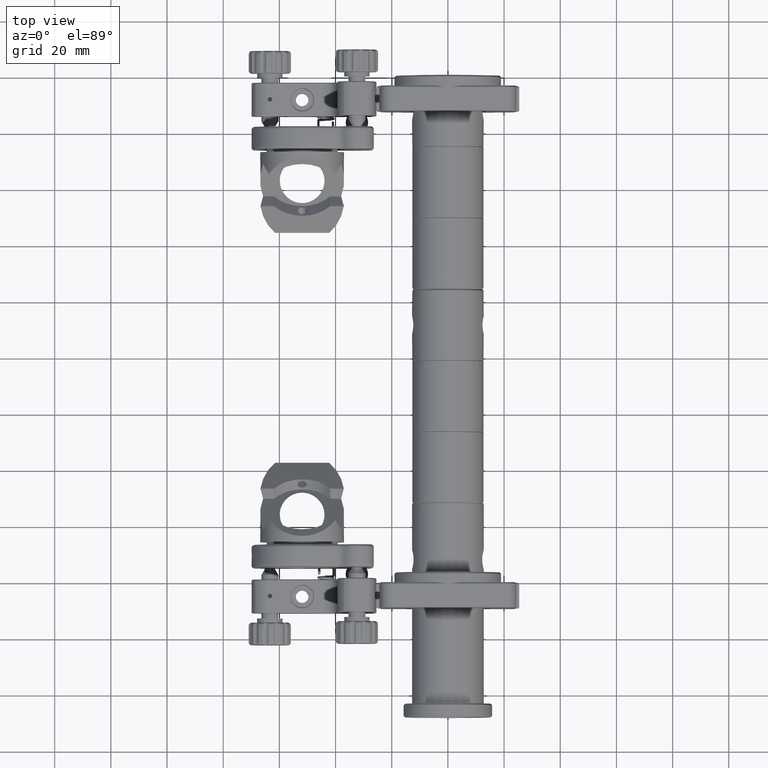
[diagram: clean part render]
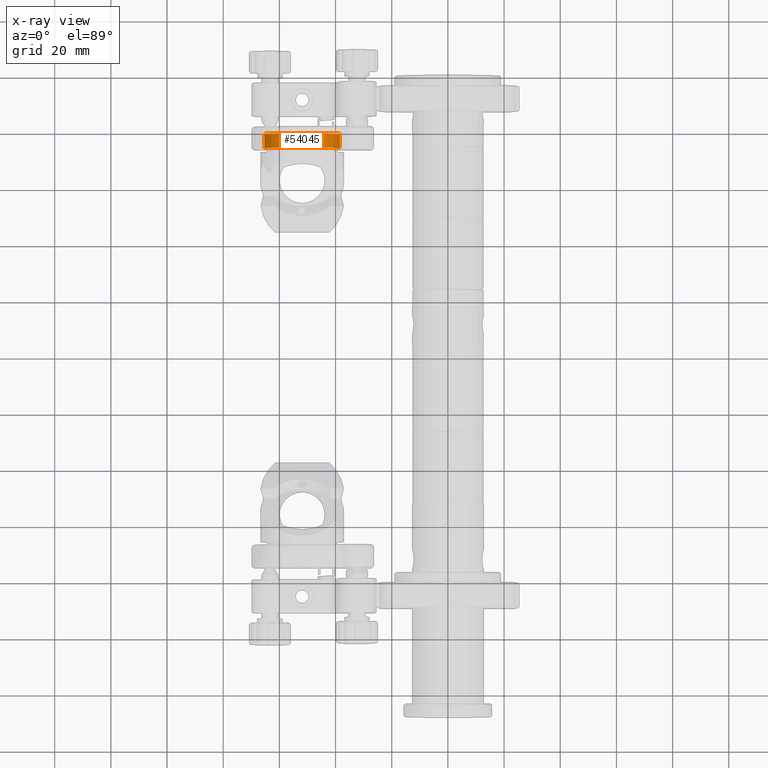
[diagram: x-ray — body ghosted, one internal face saturated and labeled with its STEP entity id]
A machine part, top view, then the same camera in x-ray: the body is ghosted and one INTERNAL B-rep face — a face not visible from any outside direction — is saturated and labeled: STEP entity #54045.
In plain terms, the highlighted cylindrical surface (partial cylindrical patch) has radius 13.5 mm, axis along (-0, -1, 0).
Its self-contained STEP definition (entity closure, byte-faithful):
#12 = CIRCLE ( 'NONE', #44363, 13.50000000000000200 ) ;
#335 = EDGE_CURVE ( 'NONE', #698, #12741, #46315, .T. ) ;
#546 = CYLINDRICAL_SURFACE ( 'NONE', #41869, 13.50000000000000200 ) ;
#698 = VERTEX_POINT ( 'NONE', #32241 ) ;
#2314 = CARTESIAN_POINT ( 'NONE',  ( -51.90000000000009100, -0.7647025247540333300, 13.49999999999999500 ) ) ;
#2693 = CARTESIAN_POINT ( 'NONE',  ( -52.73179753399249800, -3.855806062625581500, 13.47581400551097500 ) ) ;
#2899 = CARTESIAN_POINT ( 'NONE',  ( -53.49702255084801500, -1.986235078294259300, 13.40522169324622200 ) ) ;
#2925 = CARTESIAN_POINT ( 'NONE',  ( -50.89387000252127500, -3.726885769342837700, 13.46275515442689000 ) ) ;
#3083 = CARTESIAN_POINT ( 'NONE',  ( -53.14203697783220500, -1.323185423163695900, 13.44296017083660500 ) ) ;
#4809 = ORIENTED_EDGE ( 'NONE', *, *, #38035, .T. ) ;
#5009 = CARTESIAN_POINT ( 'NONE',  ( -51.90000000000001300, -5.414702524754026100, -3.469446951953614200E-015 ) ) ;
#6102 = CARTESIAN_POINT ( 'NONE',  ( -52.33267429338029300, -0.8080016898627732100, 13.49452899094114700 ) ) ;
#6671 = DIRECTION ( 'NONE',  ( 2.569960705150825000E-015, -1.405447260629357400E-016, -1.000000000000000000 ) ) ;
#6931 = CARTESIAN_POINT ( 'NONE',  ( -50.33409661521744000, -1.883526023011318900, 13.40894032977318600 ) ) ;
#7102 = CARTESIAN_POINT ( 'NONE',  ( -53.14349354139506000, -3.504555966340540300, 13.44282476577501500 ) ) ;
#7138 = CARTESIAN_POINT ( 'NONE',  ( -51.90000000000009100, -0.7647025247540333300, 13.49999999999999500 ) ) ;
#7333 = CARTESIAN_POINT ( 'NONE',  ( -51.79087088004188600, -4.064702524754015800, 13.49999999999999600 ) ) ;
#7898 = CARTESIAN_POINT ( 'NONE',  ( -53.55007833630671900, -2.522610514484297200, 13.39877761179538900 ) ) ;
#9625 = DIRECTION ( 'NONE',  ( 2.569960705150825000E-015, -1.284980352575412500E-016, -1.000000000000000000 ) ) ;
#11482 = DIRECTION ( 'NONE',  ( -8.805037054117872500E-017, -1.000000000000000000, 6.245004513516504300E-017 ) ) ;
#11540 = CARTESIAN_POINT ( 'NONE',  ( -53.46593205063715700, -2.945781966528259400, 13.40893687787423400 ) ) ;
#11573 = CARTESIAN_POINT ( 'NONE',  ( -51.07199022769644600, -0.9834636769167346400, 13.47488082814570600 ) ) ;
#11944 = CARTESIAN_POINT ( 'NONE',  ( -52.33499326868661000, -4.020768339289401400, 13.49445186381718300 ) ) ;
#11971 = CARTESIAN_POINT ( 'NONE',  ( -51.36769156081574300, -3.980219503143966900, 13.48987206557105800 ) ) ;
#12330 = EDGE_LOOP ( 'NONE', ( #49856, #16319 ) ) ;
#12350 = CARTESIAN_POINT ( 'NONE',  ( -53.38324467731341400, -3.145574461490774400, 13.41833509080950600 ) ) ;
#12381 = CARTESIAN_POINT ( 'NONE',  ( -50.45809772933848300, -3.245127229097543700, 13.42303167484919500 ) ) ;
#12741 = VERTEX_POINT ( 'NONE', #42122 ) ;
#13492 = VERTEX_POINT ( 'NONE', #30700 ) ;
#15933 = VECTOR ( 'NONE', #22797, 1000.000000000000000 ) ;
#16121 = DIRECTION ( 'NONE',  ( 2.569960705150825000E-015, -1.405447260629357400E-016, -1.000000000000000000 ) ) ;
#16187 = CARTESIAN_POINT ( 'NONE',  ( -53.53944186464300300, -2.629880052052961900, 13.40009977025839100 ) ) ;
#16319 = ORIENTED_EDGE ( 'NONE', *, *, #16334, .T. ) ;
#16334 = EDGE_CURVE ( 'NONE', #42150, #48317, #34350, .T. ) ;
#16619 = CARTESIAN_POINT ( 'NONE',  ( -50.25007928184694400, -2.630770651108476100, 13.39879702175430700 ) ) ;
#16810 = CARTESIAN_POINT ( 'NONE',  ( -51.16790479175301000, -3.897346207543555000, 13.48050582233333500 ) ) ;
#16984 = CARTESIAN_POINT ( 'NONE',  ( -52.11820611145374500, -4.064702524754014900, 13.49999999999998900 ) ) ;
#17107 = EDGE_CURVE ( 'NONE', #13492, #50447, #12, .T. ) ;
#17226 = LINE ( 'NONE', #19118, #43067 ) ;
#19118 = CARTESIAN_POINT ( 'NONE',  ( -63.15651268319138700, -0.4147025247540276300, -7.452578225899526600 ) ) ;
#21020 = CARTESIAN_POINT ( 'NONE',  ( -50.41685076756294800, -1.683627808464032800, 13.41834574499452500 ) ) ;
#21423 = CARTESIAN_POINT ( 'NONE',  ( -50.30289798555133300, -1.986433207663603500, 13.40521228662290700 ) ) ;
#22797 = DIRECTION ( 'NONE',  ( -8.805037054117872500E-017, -1.000000000000000000, 6.245004513516504300E-017 ) ) ;
#24785 = CARTESIAN_POINT ( 'NONE',  ( -52.72983080532562600, -0.9724558566957785000, 13.47593783623373500 ) ) ;
#24923 = CARTESIAN_POINT ( 'NONE',  ( -51.90000000000001300, -0.4147025247540274100, -3.469446951953614200E-015 ) ) ;
#25600 = CARTESIAN_POINT ( 'NONE',  ( -51.47116408247469400, -0.8177537099387979200, 13.49360239637567800 ) ) ;
#25807 = CARTESIAN_POINT ( 'NONE',  ( -50.29348866391359300, -2.848071506972018200, 13.40432701888346800 ) ) ;
#28102 = LINE ( 'NONE', #40636, #15933 ) ;
#29007 = CARTESIAN_POINT ( 'NONE',  ( -51.90000000000009100, -0.7647025247540333300, 13.49999999999999500 ) ) ;
#29988 = CARTESIAN_POINT ( 'NONE',  ( -53.49762771145226700, -2.840914551095862000, 13.40514935299204100 ) ) ;
#30196 = CARTESIAN_POINT ( 'NONE',  ( -52.91375111935383300, -1.095206250611851000, 13.46275026523245100 ) ) ;
#30392 = CARTESIAN_POINT ( 'NONE',  ( -53.21171474734386900, -1.407970468592361500, 13.43625794800760300 ) ) ;
#30587 = CARTESIAN_POINT ( 'NONE',  ( -53.38221364422906800, -1.681738509126098300, 13.41844948242673000 ) ) ;
#30694 = ORIENTED_EDGE ( 'NONE', *, *, #335, .T. ) ;
#30700 = CARTESIAN_POINT ( 'NONE',  ( -40.64348731680859600, -0.4147025247540295800, -7.452578225899463500 ) ) ;
#30717 = FACE_BOUND ( 'NONE', #12330, .T. ) ;
#32241 = CARTESIAN_POINT ( 'NONE',  ( -40.64348731680859600, -5.414702524754027900, -7.452578225899467100 ) ) ;
#32373 = DIRECTION ( 'NONE',  ( 8.805037054117872500E-017, 1.000000000000000000, -6.245004513516504300E-017 ) ) ;
#32770 = ORIENTED_EDGE ( 'NONE', *, *, #17107, .F. ) ;
#34350 = B_SPLINE_CURVE_WITH_KNOTS ( 'NONE', 3,
 ( #29007, #47644, #6102, #24785, #30196, #3083, #30392, #53278, #30587, #43656, #2899, #35396, #44460, #7898, #16187, #29988, #11540, #12350, #34604, #39426, #7102, #52872, #2693, #11944, #16984, #39218 ),
 .UNSPECIFIED., .F., .F.,
 ( 4, 2, 2, 2, 2, 2, 2, 2, 2, 2, 2, 2, 4 ),
 ( 0.005163477524172888800, 0.005808758060064343900, 0.006454038595955799100, 0.006776678863901519300, 0.007099319131847239500, 0.007421959399792959700, 0.007744599667738679900, 0.008067239935684400100, 0.008389880203630118600, 0.008712520471575838800, 0.009035160739521559000, 0.009680441275413013300, 0.01032572181130446800 ),
 .UNSPECIFIED. ) ;
#34363 = DIRECTION ( 'NONE',  ( -8.805037054117872500E-017, -1.000000000000000000, 6.245004513516504300E-017 ) ) ;
#34604 = CARTESIAN_POINT ( 'NONE',  ( -53.33263635951028200, -3.240337529556913700, 13.42390279988092600 ) ) ;
#34629 = CARTESIAN_POINT ( 'NONE',  ( -51.47254701531492300, -4.011999909684673700, 13.49364386035147600 ) ) ;
#34823 = CARTESIAN_POINT ( 'NONE',  ( -50.46849688010063800, -1.587148804442257500, 13.42402329545189400 ) ) ;
#35019 = CARTESIAN_POINT ( 'NONE',  ( -51.36829771951184400, -0.8489807550742863900, 13.48989597384511200 ) ) ;
#35224 = CARTESIAN_POINT ( 'NONE',  ( -51.68358586175476400, -4.053982827444836600, 13.49867792062929300 ) ) ;
#35396 = CARTESIAN_POINT ( 'NONE',  ( -53.53912780388785100, -2.197158453093537300, 13.40013842150587600 ) ) ;
#36456 = FACE_OUTER_BOUND ( 'NONE', #41543, .T. ) ;
#37111 = DIRECTION ( 'NONE',  ( -8.805037054117872500E-017, -1.000000000000000000, 6.245004513516504300E-017 ) ) ;
#38035 = EDGE_CURVE ( 'NONE', #13492, #698, #28102, .T. ) ;
#38687 = CARTESIAN_POINT ( 'NONE',  ( -63.15651268319138700, -0.4147025247540276300, -7.452578225899526600 ) ) ;
#39100 = CARTESIAN_POINT ( 'NONE',  ( -51.90000000000009800, -4.064702524754015800, 13.49999999999999100 ) ) ;
#39218 = CARTESIAN_POINT ( 'NONE',  ( -51.90000000000009800, -4.064702524754015800, 13.49999999999999100 ) ) ;
#39426 = CARTESIAN_POINT ( 'NONE',  ( -53.21303781060167600, -3.419715861818298100, 13.43612834960920400 ) ) ;
#39457 = CARTESIAN_POINT ( 'NONE',  ( -51.07316539467920100, -3.846647696417468500, 13.47495523017862100 ) ) ;
#39645 = CARTESIAN_POINT ( 'NONE',  ( -50.58099125586964100, -3.429084449845515100, 13.43627582242301700 ) ) ;
#39848 = CARTESIAN_POINT ( 'NONE',  ( -51.90000000000009800, -4.064702524754015800, 13.49999999999999100 ) ) ;
#40636 = CARTESIAN_POINT ( 'NONE',  ( -40.64348731680859600, -0.4147025247540295800, -7.452578225899467100 ) ) ;
#41543 = EDGE_LOOP ( 'NONE', ( #4809, #30694, #58717, #32770 ) ) ;
#41869 = AXIS2_PLACEMENT_3D ( 'NONE', #24923, #11482, #16121 ) ;
#42122 = CARTESIAN_POINT ( 'NONE',  ( -63.15651268319138700, -5.414702524754026100, -7.452578225899526600 ) ) ;
#42150 = VERTEX_POINT ( 'NONE', #2314 ) ;
#42640 = CARTESIAN_POINT ( 'NONE',  ( -51.90000000000001300, -0.4147025247540274100, -3.469446951953614200E-015 ) ) ;
#42684 = AXIS2_PLACEMENT_3D ( 'NONE', #5009, #37111, #9625 ) ;
#43067 = VECTOR ( 'NONE', #32373, 1000.000000000000000 ) ;
#43656 = CARTESIAN_POINT ( 'NONE',  ( -53.46519762705632700, -1.881457812073683300, 13.40902308849658200 ) ) ;
#44293 = CARTESIAN_POINT ( 'NONE',  ( -50.80906033101026500, -3.657246016099700000, 13.45606456767560700 ) ) ;
#44363 = AXIS2_PLACEMENT_3D ( 'NONE', #42640, #34363, #6671 ) ;
#44460 = CARTESIAN_POINT ( 'NONE',  ( -53.54992080364772300, -2.304412036103053100, 13.39879701122412900 ) ) ;
#44490 = CARTESIAN_POINT ( 'NONE',  ( -50.65617448500511700, -1.325092777856510500, 13.44279982074448300 ) ) ;
#46216 = EDGE_CURVE ( 'NONE', #48317, #42150, #55843, .T. ) ;
#46315 = CIRCLE ( 'NONE', #42684, 13.50000000000000200 ) ;
#47644 = CARTESIAN_POINT ( 'NONE',  ( -52.11542445027716000, -0.7647025247540326600, 13.49999999999999500 ) ) ;
#48317 = VERTEX_POINT ( 'NONE', #39100 ) ;
#48663 = CARTESIAN_POINT ( 'NONE',  ( -50.81011394959331500, -1.171119110014477500, 13.45615536955073600 ) ) ;
#48864 = CARTESIAN_POINT ( 'NONE',  ( -50.26071695465957100, -2.198137177164781100, 13.40011949167771900 ) ) ;
#49060 = CARTESIAN_POINT ( 'NONE',  ( -50.24996052615909300, -2.307577888834653600, 13.39878239752991400 ) ) ;
#49856 = ORIENTED_EDGE ( 'NONE', *, *, #46216, .T. ) ;
#50447 = VERTEX_POINT ( 'NONE', #38687 ) ;
#52700 = EDGE_CURVE ( 'NONE', #12741, #50447, #17226, .T. ) ;
#52872 = CARTESIAN_POINT ( 'NONE',  ( -52.91560436417628900, -3.732759663872883900, 13.46260759506743600 ) ) ;
#52899 = CARTESIAN_POINT ( 'NONE',  ( -50.89336754103668200, -1.102934284876936100, 13.46271535049004700 ) ) ;
#53105 = CARTESIAN_POINT ( 'NONE',  ( -51.16850972759170400, -0.9317615426184120400, 13.48053866437135000 ) ) ;
#53278 = CARTESIAN_POINT ( 'NONE',  ( -53.33147823165004600, -1.587070309567304700, 13.42402671690237700 ) ) ;
#53504 = CARTESIAN_POINT ( 'NONE',  ( -51.68281908948701200, -0.7755020448223259900, 13.49866802050276200 ) ) ;
#54045 = ADVANCED_FACE ( 'NONE', ( #30717, #36456 ), #546, .F. ) ;
#55843 = B_SPLINE_CURVE_WITH_KNOTS ( 'NONE', 3,
 ( #39848, #7333, #35224, #34629, #11971, #16810, #39457, #2925, #44293, #39645, #12381, #25807, #16619, #49060, #48864, #21423, #6931, #21020, #34823, #57314, #44490, #48663, #52899, #11573, #53105, #35019, #25600, #53504, #57727, #7138 ),
 .UNSPECIFIED., .F., .F.,
 ( 4, 2, 2, 2, 2, 2, 2, 2, 2, 2, 2, 2, 2, 2, 4 ),
 ( 0.0000000000000000000, 0.0003227173452608051700, 0.0006454346905216103400, 0.0009681520357824154500, 0.001290869381043220700, 0.001936304071564831300, 0.002581738762086442200, 0.002904456107347247500, 0.003227173452608053700, 0.003549890797868859500, 0.003872608143129664800, 0.004195325488390471000, 0.004518042833651276400, 0.004840760178912082600, 0.005163477524172888800 ),
 .UNSPECIFIED. ) ;
#57314 = CARTESIAN_POINT ( 'NONE',  ( -50.58791916368245700, -1.408476793989932300, 13.43622143677622600 ) ) ;
#57727 = CARTESIAN_POINT ( 'NONE',  ( -51.79226204289337000, -0.7647025247540332200, 13.49999999999999500 ) ) ;
#58717 = ORIENTED_EDGE ( 'NONE', *, *, #52700, .T. ) ;